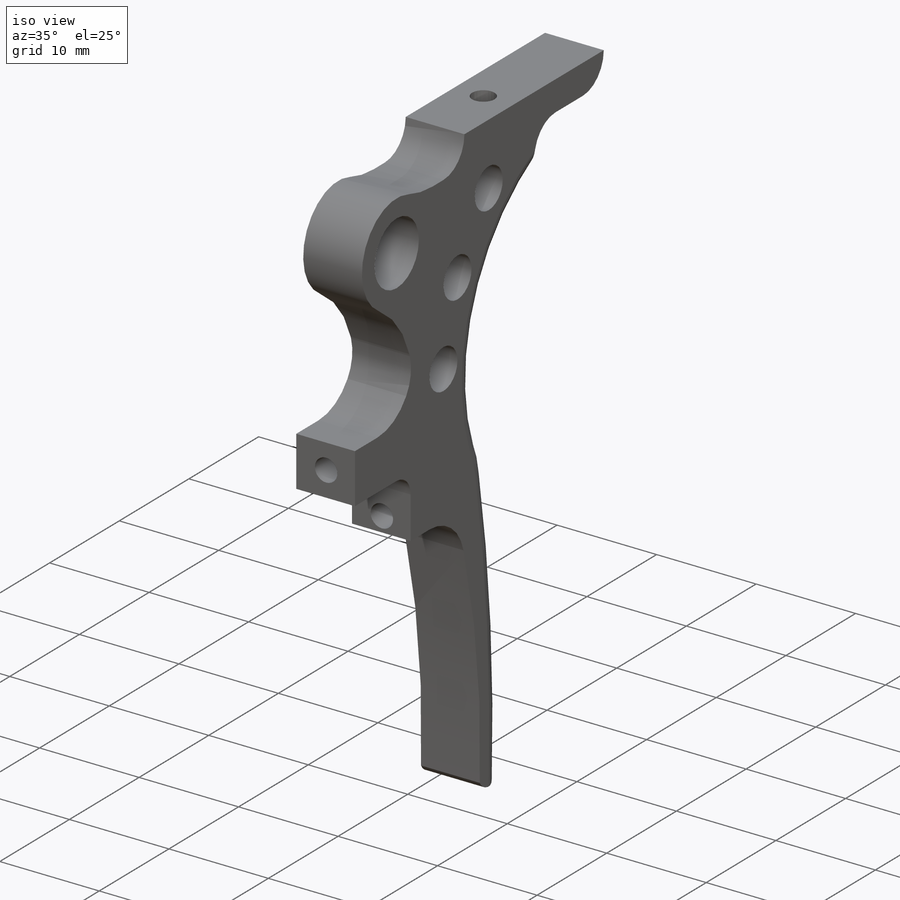
[diagram: iso view]
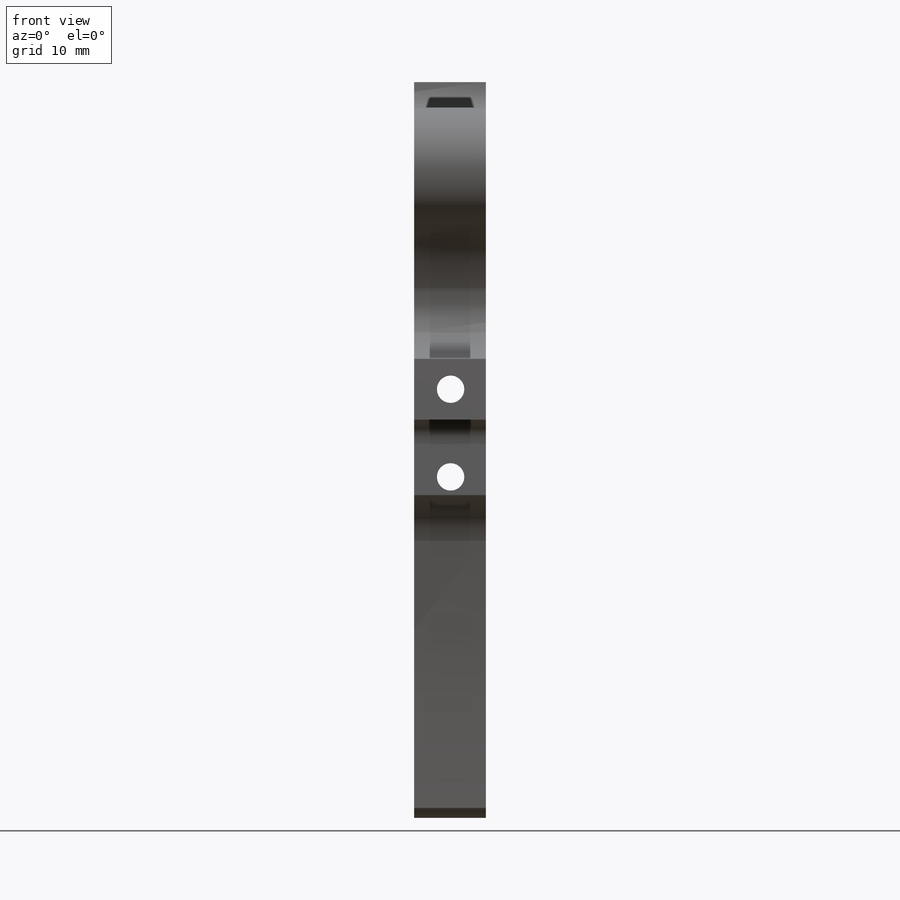
[diagram: front view]
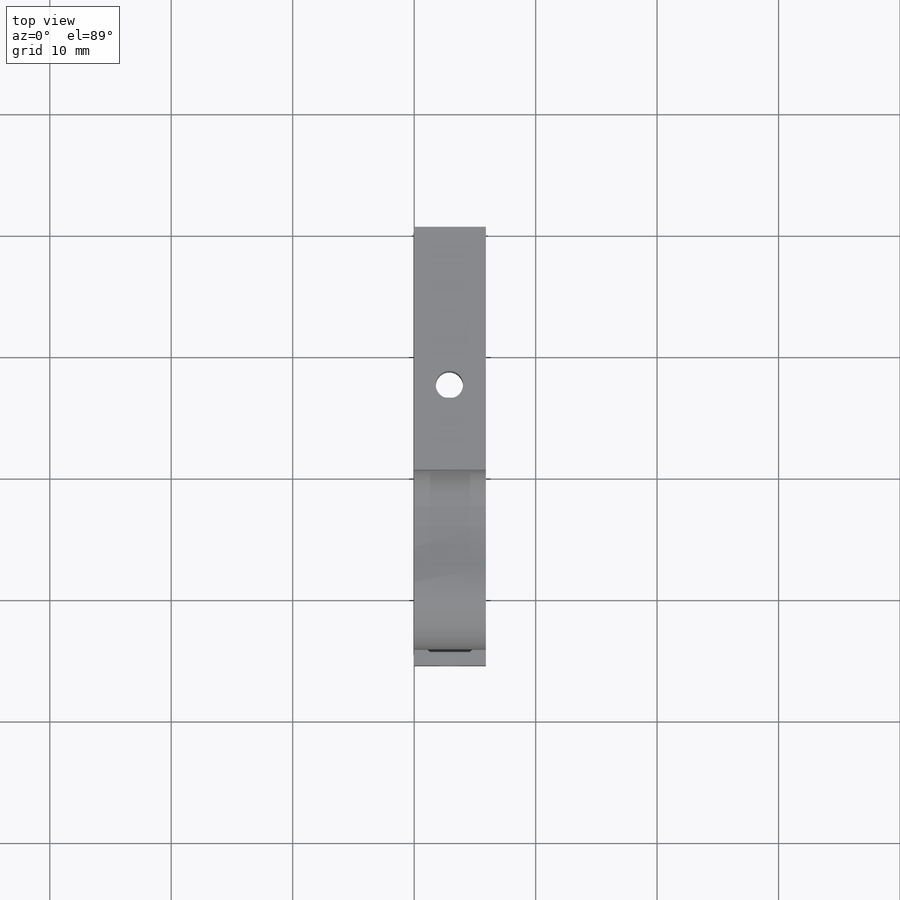
[diagram: top view]
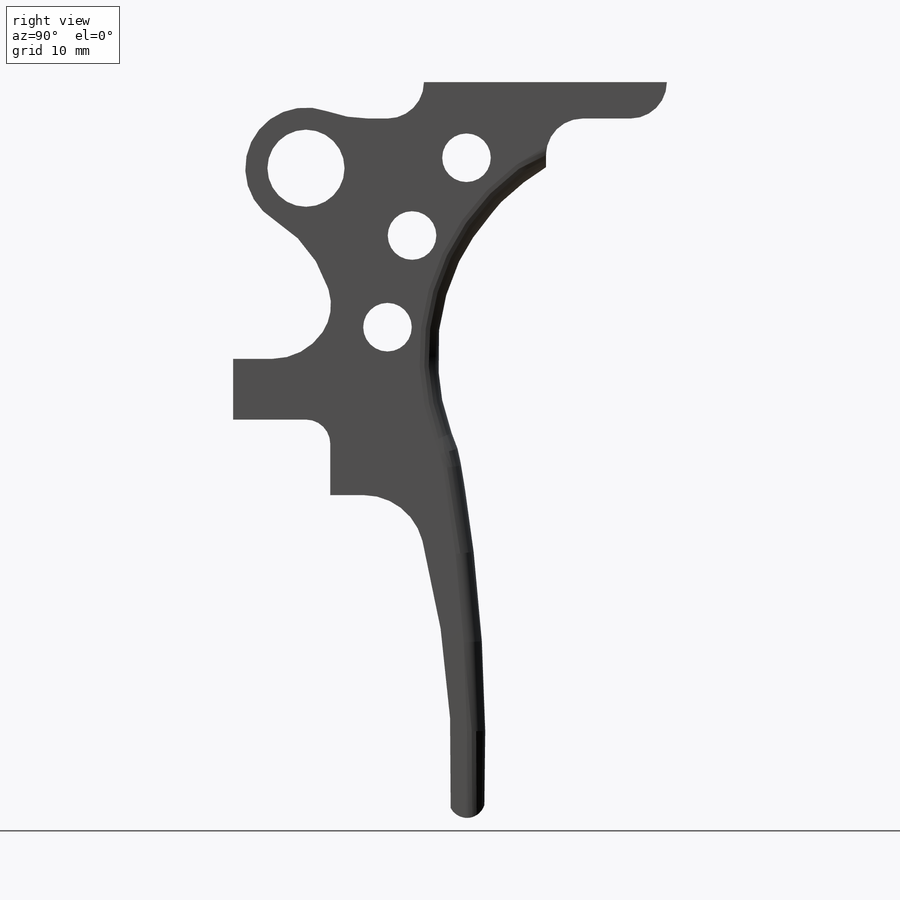
[diagram: right view]
SOLIDWORKS PART (.sldprt)
format: sldprt  version: not decoded by parser v0  size: 537,088 bytes
history: native  units: mm
features: sketch x11, fillet x11, cut_extrude x6, thread x3, hole x2, material x1, extrude x1 (+12 scaffold rows collapsed)
feature tree (47):
  scaffold x12  (default folders/planes/origin — collapsed)
  material  "Material <not specified>"
  sketch  "Sketch1"  dims[c1.D1=6.35mm c1.D3=1.5mm c1.D4=5.0mm c1.D2=9.0mm c1.D7=18.0mm c1.D8=5.0mm c1.D14=10.0mm c2.D2=18.0mm c2.D5=4.0mm c2.D6=28.0mm c2.D7=14.0mm c2.D8=5.0mm c2.D9=5.0mm c3.D8=31.0mm c3.D10=2.0mm c3.D11=~20.051962mm c3.D4=3.0mm c3.D12=10.0mm c3.D13=20.0mm]
  extrude  "Boss-Extrude1"  Depth=5.9mm
  fillet  "Fillet5"  Radius=1.5mm
  fillet  "Fillet7"  Radius=5mm
  fillet  "Fillet9"  Radius=4mm
  fillet  "Fillet10"  Radius=1.5mm
  fillet  "Fillet11"  Radius=1.5mm
  fillet  "Fillet13"  Radius=5mm
  fillet  "Fillet14"  Radius=2mm
  hole  "#4-40 Tapped Hole2"  Diameter=2.2606mm Depth=25mm
  sketch  "Sketch8"  dims[c1.D1=3.0mm c1.D2=3.0mm c2.D1=1.5mm c2.D2=3.0mm c2.D3=2.5mm c2.D4=3.0mm]
  sketch  "Sketch7"  dims[hole-wizard template sketch: 47 standard entries collapsed; hole parameters kept: c15.Tap Drill Depth=25.0mm c15.D3=~14.816244mm c15.Drill Angle=118.0deg]
  thread  "Hole Thread2"  Diameter=20mm  [1 undecoded]
  thread  "Hole Thread3"  Diameter=20mm  [1 undecoded]
  fillet  "Fillet15"  Radius=3mm
  fillet  "Fillet16"  Radius=3mm
  hole  "#4-40 Tapped Hole3"  Diameter=2.2606mm Depth=10mm
  sketch  "Sketch10"  dims[D1=3.0mm D2=7.0mm]
  sketch  "Sketch9"  dims[hole-wizard template sketch: 47 standard entries collapsed; hole parameters kept: c15.Tap Drill Depth=10.0mm c15.D3=~14.816244mm c15.Drill Angle=118.0deg]
  thread  "Hole Thread4"  Diameter=10mm  [1 undecoded]
  fillet  "Fillet17"  Radius=3mm
  sketch  "Sketch11"  dims[D1=6.0mm]
  cut_extrude  "Cut-Extrude1"  Depth=13mm
  sketch  "Sketch12"  dims[D2=4.0mm D3=3.3mm D4=4.0mm D5=3.3mm D6=4.0mm D1=3.0mm]
  cut_extrude  "Cut-Extrude2"  Depth=10mm
  sketch  "Sketch14"  dims[D1=5.6mm]
  cut_extrude  "reduce width for replicator"  Depth=40mm
  sketch  "Sketch15"  dims[D1=7.8mm]
  cut_extrude  "c/b for brg right"  Depth=1mm
  sketch  "Sketch16"  dims[D1=7.8mm]
  cut_extrude  "c/b for brg left"  Depth=1mm
  sketch  "Sketch17"  dims[c1.D1=2.2606mm c1.D2=~2.533686mm c2.D1=7.31mm c2.D2=2.8mm]
  cut_extrude  "Cut-Extrude3"  Depth=10mm
  fillet  "Fillet18"  Radius=10mm
decode coverage: 34 of 34 modeling features carry decoded parameters
note: ~ marks probable driven/reference dimensions
note: 3 parameter values undecoded
note: suppression state not decoded; provenance and decode notes live in map.json
